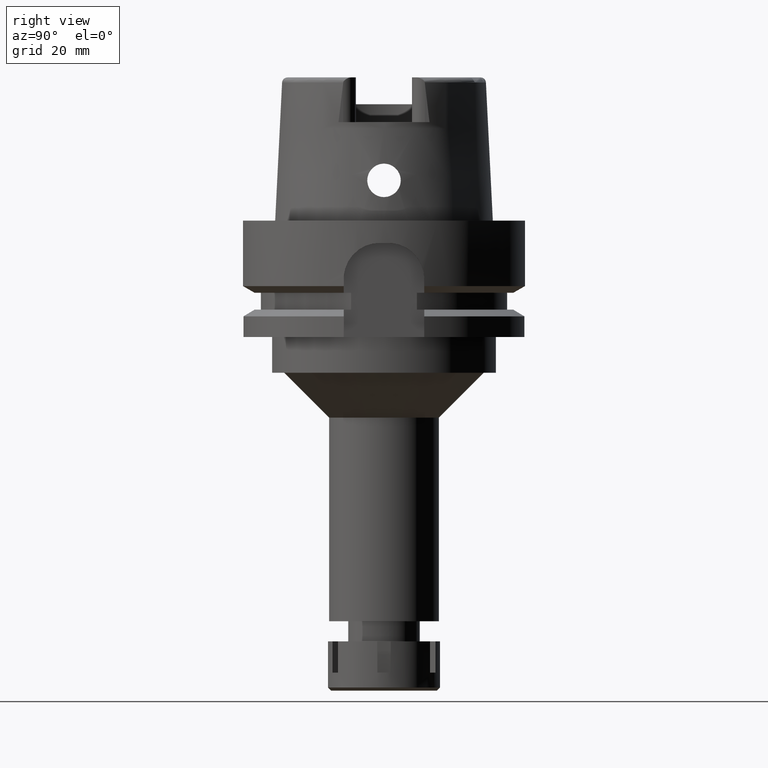
[diagram: clean part render]
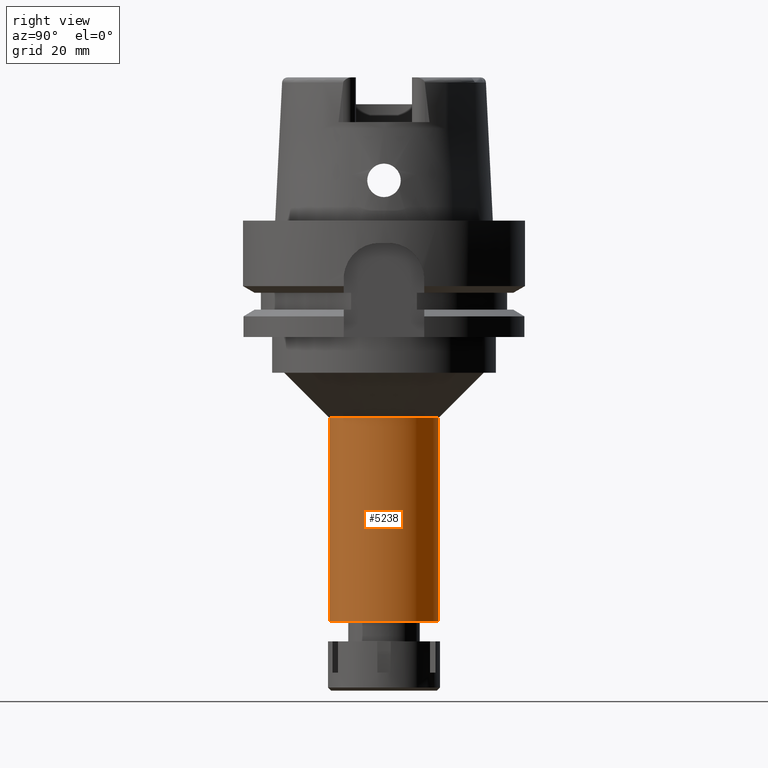
[diagram: same view with one face highlighted and labeled with its STEP entity id]
A machine part, right view. The second image highlights one B-rep face of the part: STEP entity #5238.
In plain terms, the highlighted cylindrical surface (partial cylindrical patch) has radius 12.25 mm, axis along (0, 0, 1).
Its self-contained STEP definition (entity closure, byte-faithful):
#171 = CARTESIAN_POINT ( 'NONE',  ( 0.0000000000000000000, 12.25000000000000000, -44.00000000000000000 ) ) ;
#270 = LINE ( 'NONE', #2162, #3631 ) ;
#400 = DIRECTION ( 'NONE',  ( 0.0000000000000000000, -1.000000000000000000, 0.0000000000000000000 ) ) ;
#775 = VERTEX_POINT ( 'NONE', #1409 ) ;
#799 = CYLINDRICAL_SURFACE ( 'NONE', #5603, 12.25000000000000000 ) ;
#1003 = VERTEX_POINT ( 'NONE', #2794 ) ;
#1103 = CIRCLE ( 'NONE', #3575, 12.25000000000000000 ) ;
#1140 = LINE ( 'NONE', #171, #5429 ) ;
#1335 = CARTESIAN_POINT ( 'NONE',  ( 0.0000000000000000000, 0.0000000000000000000, -89.50000000000000000 ) ) ;
#1409 = CARTESIAN_POINT ( 'NONE',  ( 0.0000000000000000000, 12.25000000000000000, -89.50000000000000000 ) ) ;
#1482 = VERTEX_POINT ( 'NONE', #5637 ) ;
#1505 = AXIS2_PLACEMENT_3D ( 'NONE', #5766, #4054, #5943 ) ;
#1909 = CARTESIAN_POINT ( 'NONE',  ( 0.0000000000000000000, 12.25000000000000000, -44.00000000000000000 ) ) ;
#2162 = CARTESIAN_POINT ( 'NONE',  ( 0.0000000000000000000, -12.25000000000000000, -44.00000000000000000 ) ) ;
#2170 = CARTESIAN_POINT ( 'NONE',  ( 0.0000000000000000000, 0.0000000000000000000, -105.5500000000000114 ) ) ;
#2419 = EDGE_CURVE ( 'NONE', #1482, #775, #1103, .T. ) ;
#2496 = DIRECTION ( 'NONE',  ( 0.0000000000000000000, 0.0000000000000000000, -1.000000000000000000 ) ) ;
#2585 = EDGE_LOOP ( 'NONE', ( #3600, #5031, #4828, #4647 ) ) ;
#2794 = CARTESIAN_POINT ( 'NONE',  ( 0.0000000000000000000, -12.25000000000000000, -44.00000000000000000 ) ) ;
#2988 = CIRCLE ( 'NONE', #1505, 12.25000000000000000 ) ;
#3229 = DIRECTION ( 'NONE',  ( 0.0000000000000000000, 0.0000000000000000000, 1.000000000000000000 ) ) ;
#3291 = EDGE_CURVE ( 'NONE', #4821, #1003, #2988, .T. ) ;
#3535 = DIRECTION ( 'NONE',  ( 0.0000000000000000000, 1.000000000000000000, 0.0000000000000000000 ) ) ;
#3575 = AXIS2_PLACEMENT_3D ( 'NONE', #1335, #3229, #400 ) ;
#3600 = ORIENTED_EDGE ( 'NONE', *, *, #3291, .T. ) ;
#3631 = VECTOR ( 'NONE', #5002, 1000.000000000000000 ) ;
#4026 = DIRECTION ( 'NONE',  ( 0.0000000000000000000, 0.0000000000000000000, 1.000000000000000000 ) ) ;
#4054 = DIRECTION ( 'NONE',  ( 0.0000000000000000000, 0.0000000000000000000, -1.000000000000000000 ) ) ;
#4100 = EDGE_CURVE ( 'NONE', #4821, #775, #1140, .T. ) ;
#4647 = ORIENTED_EDGE ( 'NONE', *, *, #4100, .F. ) ;
#4821 = VERTEX_POINT ( 'NONE', #1909 ) ;
#4828 = ORIENTED_EDGE ( 'NONE', *, *, #2419, .T. ) ;
#4954 = FACE_OUTER_BOUND ( 'NONE', #2585, .T. ) ;
#5002 = DIRECTION ( 'NONE',  ( 0.0000000000000000000, 0.0000000000000000000, -1.000000000000000000 ) ) ;
#5031 = ORIENTED_EDGE ( 'NONE', *, *, #5848, .T. ) ;
#5238 = ADVANCED_FACE ( 'NONE', ( #4954 ), #799, .T. ) ;
#5429 = VECTOR ( 'NONE', #2496, 1000.000000000000000 ) ;
#5603 = AXIS2_PLACEMENT_3D ( 'NONE', #2170, #4026, #3535 ) ;
#5637 = CARTESIAN_POINT ( 'NONE',  ( 0.0000000000000000000, -12.25000000000000000, -89.50000000000000000 ) ) ;
#5766 = CARTESIAN_POINT ( 'NONE',  ( 0.0000000000000000000, 0.0000000000000000000, -44.00000000000000000 ) ) ;
#5848 = EDGE_CURVE ( 'NONE', #1003, #1482, #270, .T. ) ;
#5943 = DIRECTION ( 'NONE',  ( 0.0000000000000000000, 1.000000000000000000, 0.0000000000000000000 ) ) ;